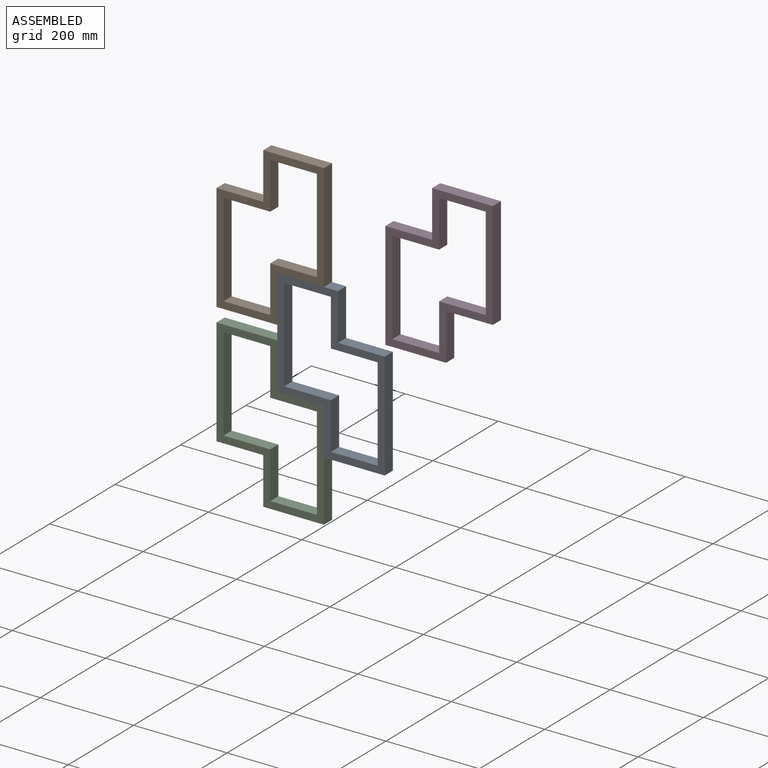
[diagram: assembled view]
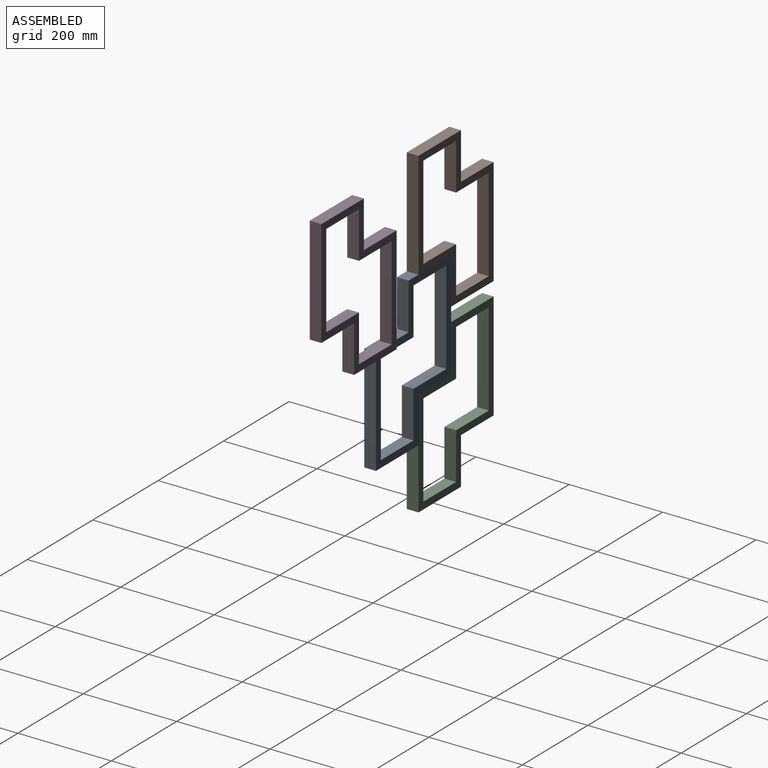
[diagram: assembled view, second angle]
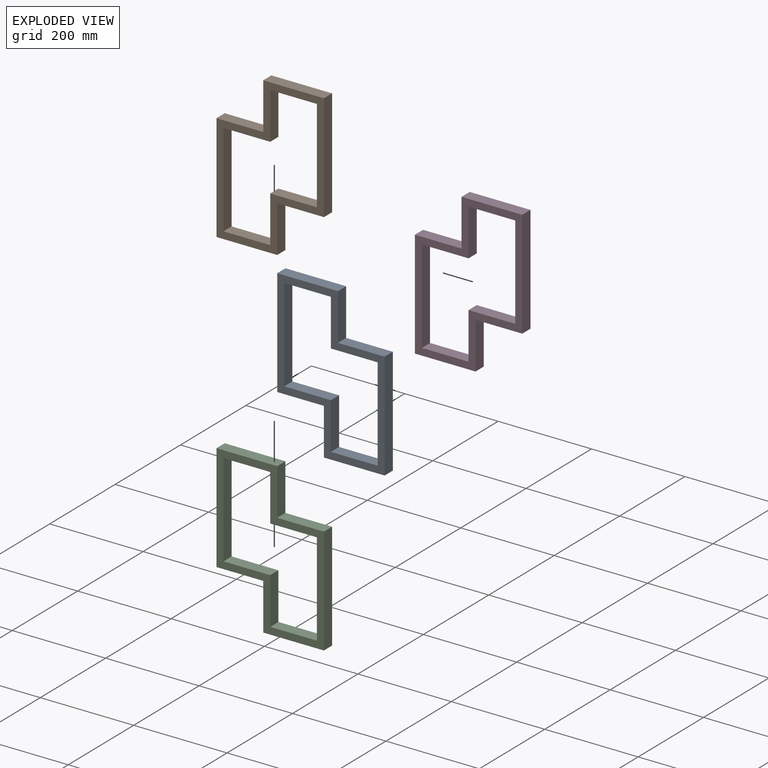
[diagram: exploded view]
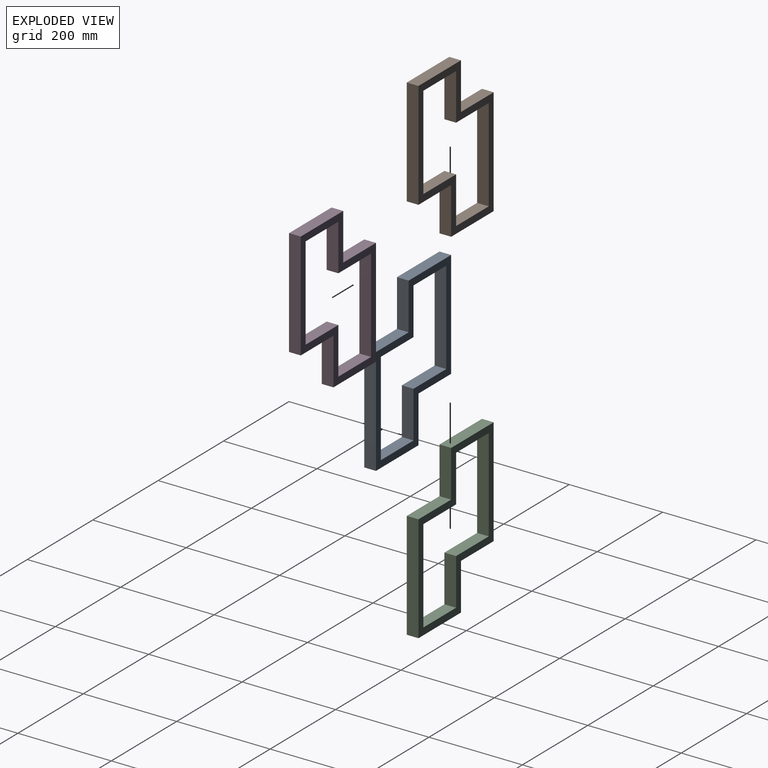
[diagram: exploded view, second angle]
ASSEMBLY  parts=4 mates=2
PART A: 18 faces, bbox 230x25x330 mm
  f0: plane 230x25mm, normal (-1,0,0), area 5750mm2, adj f1,f15,f16,f17
  f1: plane 100x25mm, normal (0,0,-1), area 2500mm2, adj f0,f2,f16,f17
  f2: plane 100x25mm, normal (-1,0,0), area 2500mm2, adj f1,f3,f16,f17
  f3: plane 130x25mm, normal (0,0,-1), area 3250mm2, adj f2,f4,f16,f17
  f4: plane 230x25mm, normal (1,0,0), area 5750mm2, adj f3,f5,f16,f17
  f5: plane 100x25mm, normal (0,0,1), area 2500mm2, adj f4,f6,f16,f17
  f6: plane 100x25mm, normal (1,0,0), area 2500mm2, adj f5,f15,f16,f17
  f7: plane 200x25mm, normal (1,0,0), area 5000mm2, adj f8,f14,f16,f17
  f8: plane 100x25mm, normal (0,0,-1), area 2500mm2, adj f7,f9,f16,f17
  f9: plane 100x25mm, normal (-1,0,0), area 2500mm2, adj f8,f10,f16,f17
  f10: plane 100x25mm, normal (0,0,-1), area 2500mm2, adj f9,f11,f16,f17
  f11: plane 200x25mm, normal (-1,0,0), area 5000mm2, adj f10,f12,f16,f17
  f12: plane 100x25mm, normal (0,0,1), area 2500mm2, adj f11,f13,f16,f17
  f13: plane 100x25mm, normal (1,0,0), area 2500mm2, adj f12,f14,f16,f17
  f14: plane 100x25mm, normal (0,0,1), area 2500mm2, adj f7,f13,f16,f17
  f15: plane 130x25mm, normal (0,0,1), area 3250mm2, adj f0,f6,f16,f17
  f16: plane 330x230mm, normal (0,-1,0), area 15900mm2, adj f0,f1,f2,f3,f4,f5,f6,f7
  f17: plane 330x230mm, normal (0,1,0), area 15900mm2, adj f0,f1,f2,f3,f4,f5,f6,f7
PART B: 18 faces, bbox 230x25x330 mm
  f0: plane 100x25mm, normal (0,0,-1), area 2500mm2, adj f1,f15,f16,f17
  f1: plane 200x25mm, normal (-1,0,0), area 5000mm2, adj f0,f2,f16,f17
  f2: plane 100x25mm, normal (0,0,1), area 2500mm2, adj f1,f3,f16,f17
  f3: plane 100x25mm, normal (-1,0,0), area 2500mm2, adj f2,f4,f16,f17
  f4: plane 100x25mm, normal (0,0,1), area 2500mm2, adj f3,f5,f16,f17
  f5: plane 200x25mm, normal (1,0,0), area 5000mm2, adj f4,f6,f16,f17
  f6: plane 100x25mm, normal (0,0,-1), area 2500mm2, adj f5,f15,f16,f17
  f7: plane 230x25mm, normal (1,0,0), area 5750mm2, adj f8,f14,f16,f17
  f8: plane 130x25mm, normal (0,0,1), area 3250mm2, adj f7,f9,f16,f17
  f9: plane 100x25mm, normal (-1,0,0), area 2500mm2, adj f8,f10,f16,f17
  f10: plane 100x25mm, normal (0,0,1), area 2500mm2, adj f9,f11,f16,f17
  f11: plane 230x25mm, normal (-1,0,0), area 5750mm2, adj f10,f12,f16,f17
  f12: plane 130x25mm, normal (0,0,-1), area 3250mm2, adj f11,f13,f16,f17
  f13: plane 100x25mm, normal (1,0,0), area 2500mm2, adj f12,f14,f16,f17
  f14: plane 100x25mm, normal (0,0,-1), area 2500mm2, adj f7,f13,f16,f17
  f15: plane 100x25mm, normal (1,0,0), area 2500mm2, adj f0,f6,f16,f17
  f16: plane 330x230mm, normal (0,-1,0), area 15900mm2, adj f0,f1,f2,f3,f4,f5,f6,f7
  f17: plane 330x230mm, normal (0,1,0), area 15900mm2, adj f0,f1,f2,f3,f4,f5,f6,f7
PART C: same geometry as A
PART D: same geometry as B
PLACE A t=(-339.7,-0.74,-178.87)mm
PLACE B t=(-239.7,-0.74,51.13)mm
PLACE C t=(-469.7,-0.74,-308.87)mm
PLACE D t=(100.56,29.67,57.1)mm
MATE fastened C.f5 <-> A.f1  axis (0,0,1) through (-354.7,-13.24,-193.87)mm
MATE fastened A.f15 <-> B.f14  axis (0,0,1) through (-354.7,-13.24,36.13)mm
